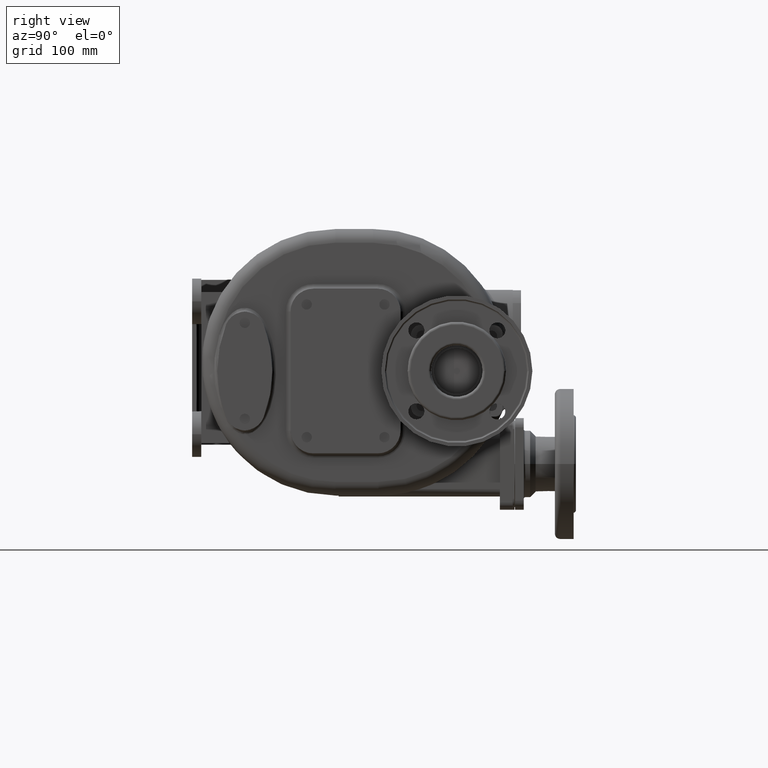
[diagram: clean part render]
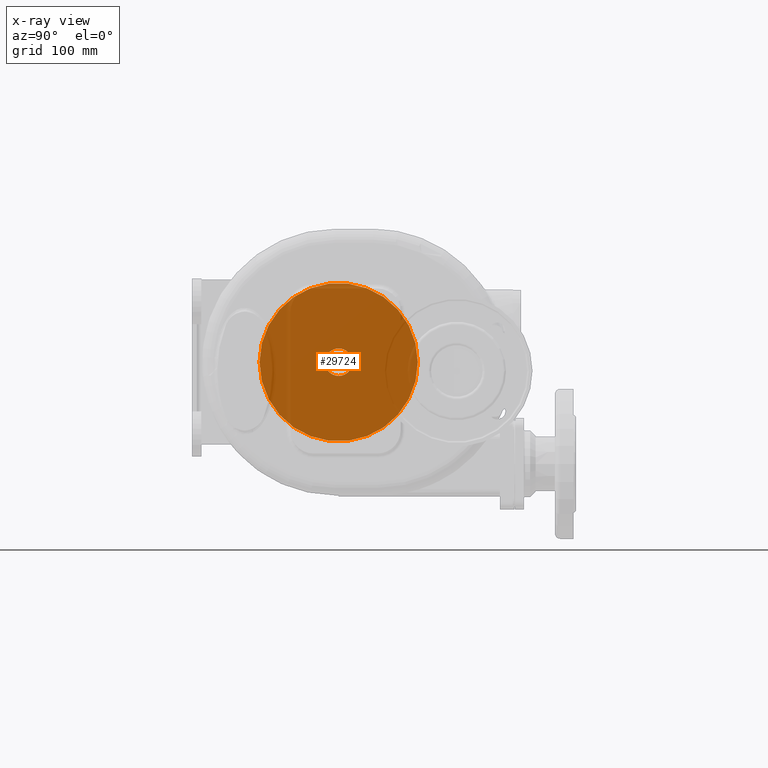
[diagram: x-ray — body ghosted, one internal face saturated and labeled with its STEP entity id]
A machine part, right view, then the same camera in x-ray: the body is ghosted and one INTERNAL B-rep face — a face not visible from any outside direction — is saturated and labeled: STEP entity #29724.
In plain terms, the highlighted planar face has unit normal (1, 0, 0).
Its self-contained STEP definition (entity closure, byte-faithful):
#29468=CARTESIAN_POINT('',(-5.5E1,1.5E2,0.E0));
#29469=DIRECTION('',(-1.E0,0.E0,0.E0));
#29470=DIRECTION('',(0.E0,-1.E0,0.E0));
#29471=AXIS2_PLACEMENT_3D('',#29468,#29469,#29470);
#29473=CARTESIAN_POINT('',(-5.5E1,1.5E2,0.E0));
#29474=DIRECTION('',(-1.E0,0.E0,0.E0));
#29475=DIRECTION('',(0.E0,1.E0,0.E0));
#29476=AXIS2_PLACEMENT_3D('',#29473,#29474,#29475);
#29478=CARTESIAN_POINT('',(-5.5E1,1.5E2,0.E0));
#29479=DIRECTION('',(1.E0,0.E0,0.E0));
#29480=DIRECTION('',(0.E0,0.E0,-1.E0));
#29481=AXIS2_PLACEMENT_3D('',#29478,#29479,#29480);
#29483=DIRECTION('',(0.E0,1.E0,0.E0));
#29484=VECTOR('',#29483,3.671400751121E0);
#29485=CARTESIAN_POINT('',(-5.5E1,1.61E2,-3.122498999199E0));
#29486=LINE('',#29485,#29484);
#29487=DIRECTION('',(0.E0,0.E0,-1.E0));
#29488=VECTOR('',#29487,6.244997998398E0);
#29489=CARTESIAN_POINT('',(-5.5E1,1.61E2,3.122498999199E0));
#29490=LINE('',#29489,#29488);
#29491=DIRECTION('',(0.E0,1.E0,0.E0));
#29492=VECTOR('',#29491,3.671400751121E0);
#29493=CARTESIAN_POINT('',(-5.5E1,1.61E2,3.122498999199E0));
#29494=LINE('',#29493,#29492);
#29495=CARTESIAN_POINT('',(-5.5E1,1.5E2,0.E0));
#29496=DIRECTION('',(1.E0,0.E0,0.E0));
#29497=DIRECTION('',(0.E0,9.780933834081E-1,2.081665999466E-1));
#29498=AXIS2_PLACEMENT_3D('',#29495,#29496,#29497);
#29500=CARTESIAN_POINT('',(-5.5E1,1.5E2,0.E0));
#29501=DIRECTION('',(1.E0,0.E0,0.E0));
#29502=DIRECTION('',(0.E0,0.E0,1.E0));
#29503=AXIS2_PLACEMENT_3D('',#29500,#29501,#29502);
#29640=CARTESIAN_POINT('',(-5.5E1,6.359323270451E1,3.849566332321E-14));
#29641=CARTESIAN_POINT('',(-5.5E1,2.364067672955E2,-2.791384622390E-14));
#29642=VERTEX_POINT('',#29640);
#29643=VERTEX_POINT('',#29641);
#29660=CARTESIAN_POINT('',(-5.5E1,1.5E2,-1.5E1));
#29661=CARTESIAN_POINT('',(-5.5E1,1.646714007511E2,-3.122498999199E0));
#29662=VERTEX_POINT('',#29660);
#29663=VERTEX_POINT('',#29661);
#29664=CARTESIAN_POINT('',(-5.5E1,1.646714007511E2,3.122498999199E0));
#29665=CARTESIAN_POINT('',(-5.5E1,1.5E2,1.5E1));
#29666=VERTEX_POINT('',#29664);
#29667=VERTEX_POINT('',#29665);
#29668=CARTESIAN_POINT('',(-5.5E1,1.61E2,3.122498999199E0));
#29669=CARTESIAN_POINT('',(-5.5E1,1.61E2,-3.122498999199E0));
#29670=VERTEX_POINT('',#29668);
#29671=VERTEX_POINT('',#29669);
#29700=CARTESIAN_POINT('',(-5.5E1,1.5E2,0.E0));
#29701=DIRECTION('',(1.E0,0.E0,0.E0));
#29702=DIRECTION('',(0.E0,0.E0,1.E0));
#29703=AXIS2_PLACEMENT_3D('',#29700,#29701,#29702);
#29704=PLANE('',#29703);
#29706=ORIENTED_EDGE('',*,*,#29705,.T.);
#29708=ORIENTED_EDGE('',*,*,#29707,.T.);
#29709=EDGE_LOOP('',(#29706,#29708));
#29710=FACE_OUTER_BOUND('',#29709,.F.);
#29712=ORIENTED_EDGE('',*,*,#29711,.T.);
#29714=ORIENTED_EDGE('',*,*,#29713,.F.);
#29715=ORIENTED_EDGE('',*,*,#29685,.F.);
#29717=ORIENTED_EDGE('',*,*,#29716,.T.);
#29719=ORIENTED_EDGE('',*,*,#29718,.T.);
#29721=ORIENTED_EDGE('',*,*,#29720,.T.);
#29722=EDGE_LOOP('',(#29712,#29714,#29715,#29717,#29719,#29721));
#29723=FACE_BOUND('',#29722,.F.);
#29724=ADVANCED_FACE('',(#29710,#29723),#29704,.T.);
#29472=CIRCLE('',#29471,8.640676729549E1);
#29477=CIRCLE('',#29476,8.640676729549E1);
#29482=CIRCLE('',#29481,1.5E1);
#29499=CIRCLE('',#29498,1.5E1);
#29504=CIRCLE('',#29503,1.5E1);
#29685=EDGE_CURVE('',#29670,#29671,#29490,.T.);
#29705=EDGE_CURVE('',#29642,#29643,#29472,.T.);
#29707=EDGE_CURVE('',#29643,#29642,#29477,.T.);
#29711=EDGE_CURVE('',#29662,#29663,#29482,.T.);
#29713=EDGE_CURVE('',#29671,#29663,#29486,.T.);
#29716=EDGE_CURVE('',#29670,#29666,#29494,.T.);
#29718=EDGE_CURVE('',#29666,#29667,#29499,.T.);
#29720=EDGE_CURVE('',#29667,#29662,#29504,.T.);